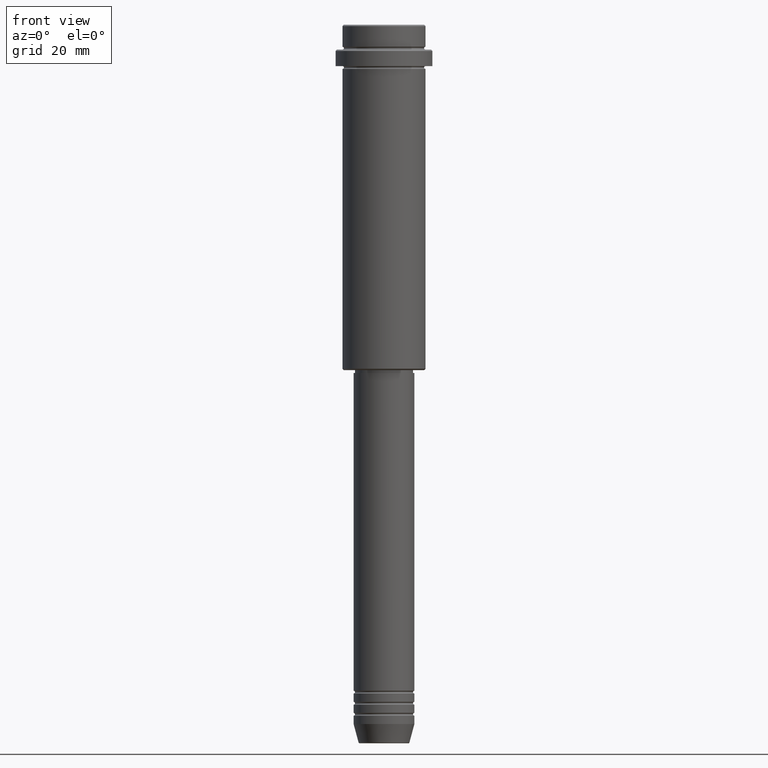
[diagram: clean part render]
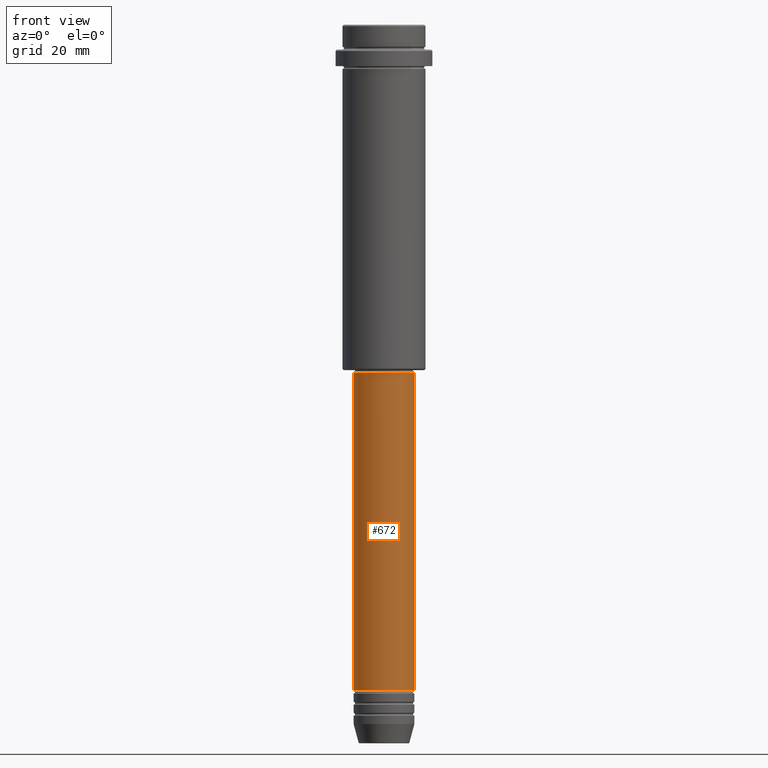
[diagram: same view with one face highlighted and labeled with its STEP entity id]
A machine part, front view. The second image highlights one B-rep face of the part: STEP entity #672.
In plain terms, the highlighted cylindrical surface (edge-blend (fillet) strip) has radius 11 mm, axis along (-0, -0, 1).
Its self-contained STEP definition (entity closure, byte-faithful):
#4 = CARTESIAN_POINT ( 'NONE',  ( 0.000000000000000000, 0.000000000000000000, 0.000000000000000000 ) ) ;
#30 = AXIS2_PLACEMENT_3D ( 'NONE', #349, #1344, #1230 ) ;
#36 = CARTESIAN_POINT ( 'NONE',  ( 11.00000000000000000, 0.000000000000000000, -240.9999999999999147 ) ) ;
#43 = VERTEX_POINT ( 'NONE', #36 ) ;
#62 = CARTESIAN_POINT ( 'NONE',  ( 11.00000000000000000, 0.000000000000000000, 0.000000000000000000 ) ) ;
#90 = EDGE_CURVE ( 'NONE', #43, #337, #609, .T. ) ;
#100 = ORIENTED_EDGE ( 'NONE', *, *, #358, .F. ) ;
#173 = VERTEX_POINT ( 'NONE', #503 ) ;
#188 = CYLINDRICAL_SURFACE ( 'NONE', #614, 11.00000000000000000 ) ;
#300 = DIRECTION ( 'NONE',  ( -0.000000000000000000, -0.000000000000000000, 1.000000000000000000 ) ) ;
#337 = VERTEX_POINT ( 'NONE', #874 ) ;
#349 = CARTESIAN_POINT ( 'NONE',  ( 0.000000000000000000, 0.000000000000000000, -126.0000000000000000 ) ) ;
#358 = EDGE_CURVE ( 'NONE', #640, #173, #1243, .T. ) ;
#384 = CIRCLE ( 'NONE', #30, 10.99999999999999822 ) ;
#461 = EDGE_CURVE ( 'NONE', #173, #337, #384, .T. ) ;
#503 = CARTESIAN_POINT ( 'NONE',  ( -10.99999999999999822, 1.347111479062088207E-15, -126.0000000000000000 ) ) ;
#525 = CARTESIAN_POINT ( 'NONE',  ( -11.00000000000000000, 1.347111479062088405E-15, -240.9999999999999147 ) ) ;
#535 = DIRECTION ( 'NONE',  ( 1.000000000000000000, 0.000000000000000000, 0.000000000000000000 ) ) ;
#609 = LINE ( 'NONE', #62, #1051 ) ;
#613 = VECTOR ( 'NONE', #1132, 1000.000000000000000 ) ;
#614 = AXIS2_PLACEMENT_3D ( 'NONE', #4, #858, #535 ) ;
#640 = VERTEX_POINT ( 'NONE', #525 ) ;
#672 = ADVANCED_FACE ( 'NONE', ( #848 ), #188, .T. ) ;
#677 = EDGE_LOOP ( 'NONE', ( #100, #1301, #1000, #760 ) ) ;
#752 = CARTESIAN_POINT ( 'NONE',  ( 0.000000000000000000, 0.000000000000000000, -240.9999999999999147 ) ) ;
#759 = DIRECTION ( 'NONE',  ( 1.000000000000000000, 0.000000000000000000, 0.000000000000000000 ) ) ;
#760 = ORIENTED_EDGE ( 'NONE', *, *, #461, .F. ) ;
#820 = DIRECTION ( 'NONE',  ( -0.000000000000000000, -0.000000000000000000, 1.000000000000000000 ) ) ;
#848 = FACE_OUTER_BOUND ( 'NONE', #677, .T. ) ;
#858 = DIRECTION ( 'NONE',  ( -0.000000000000000000, -0.000000000000000000, 1.000000000000000000 ) ) ;
#874 = CARTESIAN_POINT ( 'NONE',  ( 10.99999999999999822, 0.000000000000000000, -126.0000000000000000 ) ) ;
#904 = CARTESIAN_POINT ( 'NONE',  ( -11.00000000000000000, 1.347111479062088405E-15, 0.000000000000000000 ) ) ;
#943 = CIRCLE ( 'NONE', #1309, 11.00000000000000000 ) ;
#1000 = ORIENTED_EDGE ( 'NONE', *, *, #90, .T. ) ;
#1051 = VECTOR ( 'NONE', #820, 1000.000000000000000 ) ;
#1132 = DIRECTION ( 'NONE',  ( -0.000000000000000000, -0.000000000000000000, 1.000000000000000000 ) ) ;
#1230 = DIRECTION ( 'NONE',  ( 1.000000000000000000, 0.000000000000000000, 0.000000000000000000 ) ) ;
#1243 = LINE ( 'NONE', #904, #613 ) ;
#1267 = EDGE_CURVE ( 'NONE', #640, #43, #943, .T. ) ;
#1301 = ORIENTED_EDGE ( 'NONE', *, *, #1267, .T. ) ;
#1309 = AXIS2_PLACEMENT_3D ( 'NONE', #752, #300, #759 ) ;
#1344 = DIRECTION ( 'NONE',  ( -0.000000000000000000, -0.000000000000000000, 1.000000000000000000 ) ) ;